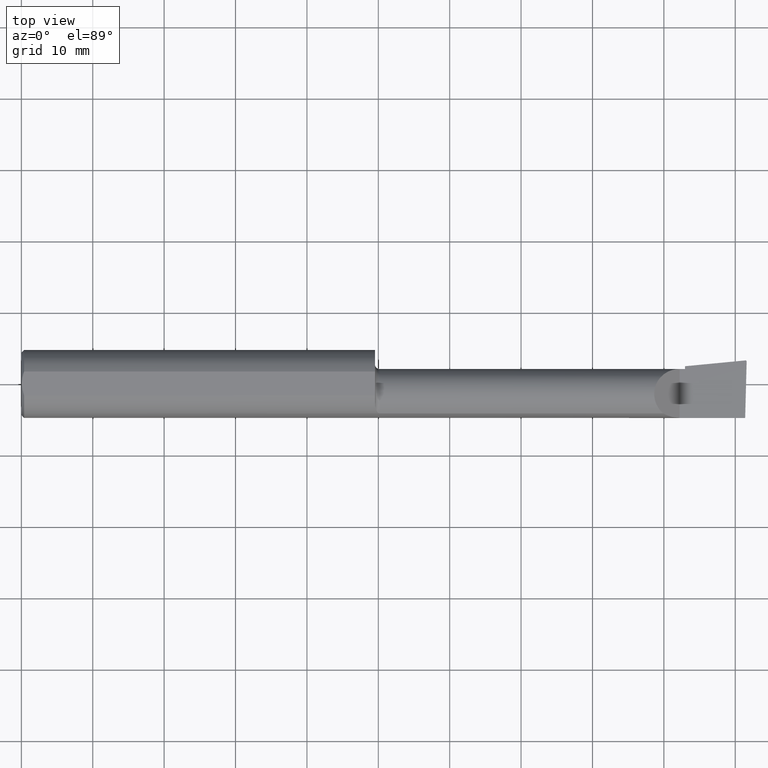
[diagram: clean part render]
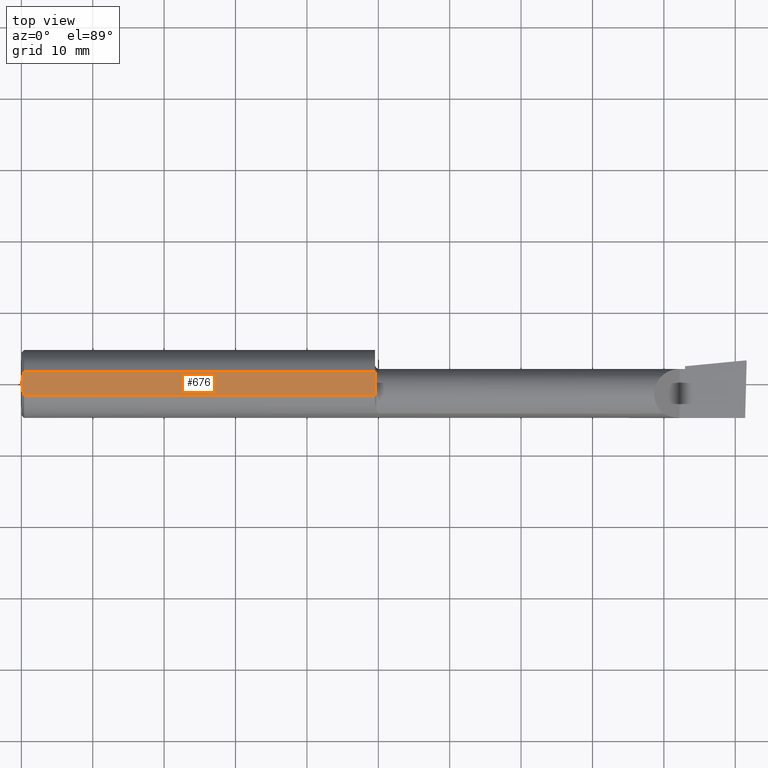
[diagram: same view with one face highlighted and labeled with its STEP entity id]
A machine part, top view. The second image highlights one B-rep face of the part: STEP entity #676.
In plain terms, the highlighted planar face has unit normal (0, -0, -1).
Its self-contained STEP definition (entity closure, byte-faithful):
#19 = EDGE_CURVE ( 'NONE', #91, #691, #139, .T. ) ;
#43 = EDGE_CURVE ( 'NONE', #691, #137, #48, .T. ) ;
#48 = B_SPLINE_CURVE_WITH_KNOTS ( 'NONE', 3,
 ( #512, #122, #610, #347, #504, #162 ),
 .UNSPECIFIED., .F., .F.,
 ( 4, 2, 4 ),
 ( 0.003480013901590607410, 0.004330767971208083697, 0.005181522040825559984 ),
 .UNSPECIFIED. ) ;
#51 = CARTESIAN_POINT ( 'NONE',  ( 1.950000000000000178, -0.06597272163553666302, 0.1753499999999999781 ) ) ;
#60 = LINE ( 'NONE', #495, #123 ) ;
#64 = EDGE_LOOP ( 'NONE', ( #615, #311, #668, #153, #664 ) ) ;
#91 = VERTEX_POINT ( 'NONE', #563 ) ;
#100 = VECTOR ( 'NONE', #407, 39.37007874015748143 ) ;
#122 = CARTESIAN_POINT ( 'NONE',  ( 0.003000000000000171366, 0.01127363201155561975, 0.1753499999999999781 ) ) ;
#123 = VECTOR ( 'NONE', #219, 39.37007874015748143 ) ;
#125 = CARTESIAN_POINT ( 'NONE',  ( 0.000000000000000000, -0.06597272163553657975, 0.1753499999999999781 ) ) ;
#128 = CARTESIAN_POINT ( 'NONE',  ( 4.000000000000000000, 0.2373500000000000332, 0.1753499999999999504 ) ) ;
#137 = VERTEX_POINT ( 'NONE', #350 ) ;
#139 = B_SPLINE_CURVE_WITH_KNOTS ( 'NONE', 3,
 ( #696, #647, #318, #483, #146, #374 ),
 .UNSPECIFIED., .F., .F.,
 ( 4, 2, 4 ),
 ( 0.001779942938356815062, 0.002629978419973711019, 0.003480013901590607410 ),
 .UNSPECIFIED. ) ;
#146 = CARTESIAN_POINT ( 'NONE',  ( 0.003000000000000172234, -0.01126410975715120416, 0.1753500000000000059 ) ) ;
#153 = ORIENTED_EDGE ( 'NONE', *, *, #19, .F. ) ;
#156 = AXIS2_PLACEMENT_3D ( 'NONE', #128, #458, #684 ) ;
#162 = CARTESIAN_POINT ( 'NONE',  ( 0.01499999999999999424, 0.06597272163553663527, 0.1753499999999999781 ) ) ;
#176 = CARTESIAN_POINT ( 'NONE',  ( 1.950000000000000178, 0.06597272163553663527, 0.1753499999999999781 ) ) ;
#219 = DIRECTION ( 'NONE',  ( 1.000000000000000000, 0.000000000000000000, 0.000000000000000000 ) ) ;
#248 = CARTESIAN_POINT ( 'NONE',  ( 1.950000000000000178, 0.2373500000000000332, 0.1753499999999999504 ) ) ;
#311 = ORIENTED_EDGE ( 'NONE', *, *, #482, .F. ) ;
#312 = DIRECTION ( 'NONE',  ( 4.268512490100411279E-18, -1.000000000000000000, 1.438723400918613551E-16 ) ) ;
#318 = CARTESIAN_POINT ( 'NONE',  ( 0.008227791779583753379, -0.04447712204611812409, 0.1753499999999999781 ) ) ;
#347 = CARTESIAN_POINT ( 'NONE',  ( 0.008244775919947423121, 0.04453482769755854470, 0.1753499999999999504 ) ) ;
#350 = CARTESIAN_POINT ( 'NONE',  ( 0.01499999999999999424, 0.06597272163553663527, 0.1753499999999999781 ) ) ;
#351 = PLANE ( 'NONE',  #156 ) ;
#356 = FACE_OUTER_BOUND ( 'NONE', #64, .T. ) ;
#361 = LINE ( 'NONE', #125, #100 ) ;
#374 = CARTESIAN_POINT ( 'NONE',  ( 0.003000000000000218638, 2.334609556160449697E-17, 0.1753499999999999781 ) ) ;
#407 = DIRECTION ( 'NONE',  ( -1.000000000000000000, -0.000000000000000000, -0.000000000000000000 ) ) ;
#427 = EDGE_CURVE ( 'NONE', #544, #551, #547, .T. ) ;
#458 = DIRECTION ( 'NONE',  ( 0.000000000000000000, -1.438723400918613551E-16, -1.000000000000000000 ) ) ;
#482 = EDGE_CURVE ( 'NONE', #137, #544, #60, .T. ) ;
#483 = CARTESIAN_POINT ( 'NONE',  ( 0.004093196532652184846, -0.02240707710020816562, 0.1753499999999999504 ) ) ;
#495 = CARTESIAN_POINT ( 'NONE',  ( 0.000000000000000000, 0.06597272163553663527, 0.1753499999999999781 ) ) ;
#504 = CARTESIAN_POINT ( 'NONE',  ( 0.01125230581755086272, 0.05532998191409921329, 0.1753500000000000059 ) ) ;
#512 = CARTESIAN_POINT ( 'NONE',  ( 0.003000000000000218638, 2.334609556160449697E-17, 0.1753499999999999781 ) ) ;
#544 = VERTEX_POINT ( 'NONE', #176 ) ;
#547 = LINE ( 'NONE', #248, #646 ) ;
#551 = VERTEX_POINT ( 'NONE', #51 ) ;
#563 = CARTESIAN_POINT ( 'NONE',  ( 0.01499999999999997863, -0.06597272163553657975, 0.1753499999999999781 ) ) ;
#570 = CARTESIAN_POINT ( 'NONE',  ( 0.003000000000000218638, 2.334609556160449697E-17, 0.1753499999999999781 ) ) ;
#610 = CARTESIAN_POINT ( 'NONE',  ( 0.004115035183746295483, 0.02255629470626744487, 0.1753499999999999781 ) ) ;
#615 = ORIENTED_EDGE ( 'NONE', *, *, #427, .F. ) ;
#643 = EDGE_CURVE ( 'NONE', #551, #91, #361, .T. ) ;
#646 = VECTOR ( 'NONE', #312, 39.37007874015748143 ) ;
#647 = CARTESIAN_POINT ( 'NONE',  ( 0.01128414053810045115, -0.05542038647445819699, 0.1753499999999999781 ) ) ;
#664 = ORIENTED_EDGE ( 'NONE', *, *, #643, .F. ) ;
#668 = ORIENTED_EDGE ( 'NONE', *, *, #43, .F. ) ;
#676 = ADVANCED_FACE ( 'NONE', ( #356 ), #351, .F. ) ;
#684 = DIRECTION ( 'NONE',  ( 0.000000000000000000, 1.000000000000000000, -1.438723400918613551E-16 ) ) ;
#691 = VERTEX_POINT ( 'NONE', #570 ) ;
#696 = CARTESIAN_POINT ( 'NONE',  ( 0.01499999999999997863, -0.06597272163553657975, 0.1753499999999999781 ) ) ;